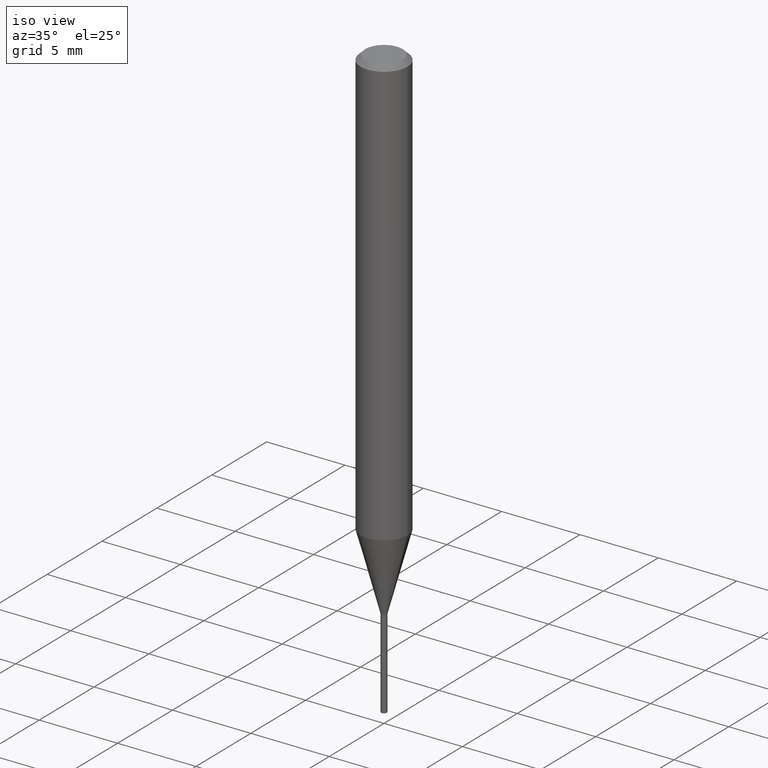
[diagram: clean part render]
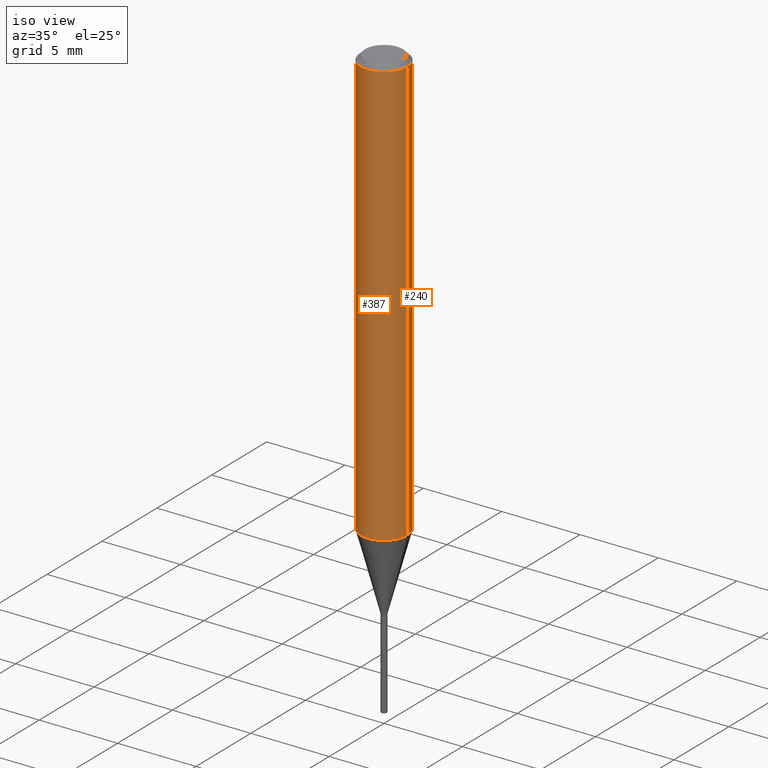
[diagram: same view with one multi-face feature highlighted, each face labeled with its STEP entity id]
A machine part, iso view. The highlighted faces form ONE feature: a constant-radius fillet chain: 2 tangent blend faces with common blend radius 1.4999 mm. The faces share edges in the B-rep.
Their STEP definitions:
[1] entity #387 (Cylinder):
#2 = EDGE_LOOP ( 'NONE', ( #309, #113, #274, #414 ) ) ;
#19 = CARTESIAN_POINT ( 'NONE',  ( -0.05905000000000013710, -3.336280682603885216E-15, -1.075719960546796861 ) ) ;
#22 = VECTOR ( 'NONE', #323, 39.37007874015748143 ) ;
#24 = LINE ( 'NONE', #112, #485 ) ;
#37 = VERTEX_POINT ( 'NONE', #192 ) ;
#44 = CARTESIAN_POINT ( 'NONE',  ( 0.05905000000000006771, -4.123439461173745257E-16, 2.879382386107503723E-30 ) ) ;
#77 = EDGE_CURVE ( 'NONE', #348, #37, #333, .T. ) ;
#78 = AXIS2_PLACEMENT_3D ( 'NONE', #340, #265, #335 ) ;
#112 = CARTESIAN_POINT ( 'NONE',  ( -0.05905000000000006771, 4.195754854663396409E-16, -2.904631170795525045E-30 ) ) ;
#113 = ORIENTED_EDGE ( 'NONE', *, *, #162, .T. ) ;
#117 = CARTESIAN_POINT ( 'NONE',  ( 0.05905000000000013710, -4.168200114187600418E-15, -1.075719960546796861 ) ) ;
#146 = VERTEX_POINT ( 'NONE', #19 ) ;
#157 = AXIS2_PLACEMENT_3D ( 'NONE', #427, #256, #419 ) ;
#162 = EDGE_CURVE ( 'NONE', #146, #459, #444, .T. ) ;
#163 = AXIS2_PLACEMENT_3D ( 'NONE', #172, #392, #424 ) ;
#172 = CARTESIAN_POINT ( 'NONE',  ( 2.630639607707897401E-29, -3.755856168070225498E-15, -1.075719960546796861 ) ) ;
#174 = CARTESIAN_POINT ( 'NONE',  ( -0.05904999999999999832, -1.478969795874641529E-15, -0.01181000000000007044 ) ) ;
#192 = CARTESIAN_POINT ( 'NONE',  ( 0.05904999999999999832, -4.535783407291118600E-16, -0.01181000000000007044 ) ) ;
#208 = LINE ( 'NONE', #44, #22 ) ;
#256 = DIRECTION ( 'NONE',  ( -2.445468806185136597E-29, 3.491481338843145583E-15, 1.000000000000000000 ) ) ;
#263 = EDGE_CURVE ( 'NONE', #459, #37, #208, .T. ) ;
#265 = DIRECTION ( 'NONE',  ( -2.445468806185136597E-29, 3.491481338843145583E-15, 1.000000000000000000 ) ) ;
#274 = ORIENTED_EDGE ( 'NONE', *, *, #263, .T. ) ;
#286 = CYLINDRICAL_SURFACE ( 'NONE', #157, 0.05905000000000006771 ) ;
#309 = ORIENTED_EDGE ( 'NONE', *, *, #435, .F. ) ;
#323 = DIRECTION ( 'NONE',  ( -2.445468806185136877E-29, 3.491481338843145188E-15, 1.000000000000000000 ) ) ;
#333 = CIRCLE ( 'NONE', #78, 0.05904999999999999832 ) ;
#335 = DIRECTION ( 'NONE',  ( 1.000000000000000000, -6.982962677686266711E-15, 0.000000000000000000 ) ) ;
#340 = CARTESIAN_POINT ( 'NONE',  ( 2.888098660104663766E-31, -4.123439461173779647E-17, -0.01181000000000007044 ) ) ;
#348 = VERTEX_POINT ( 'NONE', #174 ) ;
#387 = ADVANCED_FACE ( 'NONE', ( #454 ), #286, .T. ) ;
#392 = DIRECTION ( 'NONE',  ( -2.445468806185136597E-29, 3.491481338843145583E-15, 1.000000000000000000 ) ) ;
#414 = ORIENTED_EDGE ( 'NONE', *, *, #77, .F. ) ;
#419 = DIRECTION ( 'NONE',  ( 1.000000000000000000, -6.982962677686266711E-15, 4.876176775795936353E-29 ) ) ;
#424 = DIRECTION ( 'NONE',  ( 1.000000000000000000, -6.982962677686265133E-15, 0.000000000000000000 ) ) ;
#427 = CARTESIAN_POINT ( 'NONE',  ( 0.000000000000000000, 0.000000000000000000, 0.000000000000000000 ) ) ;
#435 = EDGE_CURVE ( 'NONE', #146, #348, #24, .T. ) ;
#444 = CIRCLE ( 'NONE', #163, 0.05905000000000013016 ) ;
#454 = FACE_OUTER_BOUND ( 'NONE', #2, .T. ) ;
#459 = VERTEX_POINT ( 'NONE', #117 ) ;
#485 = VECTOR ( 'NONE', #486, 39.37007874015748143 ) ;
#486 = DIRECTION ( 'NONE',  ( -2.445468806185136877E-29, 3.491481338843145188E-15, 1.000000000000000000 ) ) ;
[2] entity #240 (Cylinder):
#13 = DIRECTION ( 'NONE',  ( -2.445468806185136597E-29, 3.491481338843145583E-15, 1.000000000000000000 ) ) ;
#19 = CARTESIAN_POINT ( 'NONE',  ( -0.05905000000000013710, -3.336280682603885216E-15, -1.075719960546796861 ) ) ;
#22 = VECTOR ( 'NONE', #323, 39.37007874015748143 ) ;
#24 = LINE ( 'NONE', #112, #485 ) ;
#25 = ORIENTED_EDGE ( 'NONE', *, *, #263, .F. ) ;
#37 = VERTEX_POINT ( 'NONE', #192 ) ;
#44 = CARTESIAN_POINT ( 'NONE',  ( 0.05905000000000006771, -4.123439461173745257E-16, 2.879382386107503723E-30 ) ) ;
#55 = ORIENTED_EDGE ( 'NONE', *, *, #435, .T. ) ;
#65 = DIRECTION ( 'NONE',  ( -2.445468806185136597E-29, 3.491481338843145583E-15, 1.000000000000000000 ) ) ;
#88 = DIRECTION ( 'NONE',  ( -2.445468806185136597E-29, 3.491481338843145583E-15, 1.000000000000000000 ) ) ;
#94 = CIRCLE ( 'NONE', #189, 0.05904999999999999832 ) ;
#108 = ORIENTED_EDGE ( 'NONE', *, *, #200, .F. ) ;
#111 = CARTESIAN_POINT ( 'NONE',  ( 0.000000000000000000, 0.000000000000000000, 0.000000000000000000 ) ) ;
#112 = CARTESIAN_POINT ( 'NONE',  ( -0.05905000000000006771, 4.195754854663396409E-16, -2.904631170795525045E-30 ) ) ;
#117 = CARTESIAN_POINT ( 'NONE',  ( 0.05905000000000013710, -4.168200114187600418E-15, -1.075719960546796861 ) ) ;
#128 = ORIENTED_EDGE ( 'NONE', *, *, #221, .T. ) ;
#146 = VERTEX_POINT ( 'NONE', #19 ) ;
#155 = CARTESIAN_POINT ( 'NONE',  ( 2.630639607707897401E-29, -3.755856168070225498E-15, -1.075719960546796861 ) ) ;
#159 = FACE_OUTER_BOUND ( 'NONE', #222, .T. ) ;
#174 = CARTESIAN_POINT ( 'NONE',  ( -0.05904999999999999832, -1.478969795874641529E-15, -0.01181000000000007044 ) ) ;
#189 = AXIS2_PLACEMENT_3D ( 'NONE', #429, #88, #272 ) ;
#192 = CARTESIAN_POINT ( 'NONE',  ( 0.05904999999999999832, -4.535783407291118600E-16, -0.01181000000000007044 ) ) ;
#200 = EDGE_CURVE ( 'NONE', #37, #348, #94, .T. ) ;
#206 = DIRECTION ( 'NONE',  ( 1.000000000000000000, -6.982962677686266711E-15, 4.876176775795936353E-29 ) ) ;
#208 = LINE ( 'NONE', #44, #22 ) ;
#221 = EDGE_CURVE ( 'NONE', #459, #146, #378, .T. ) ;
#222 = EDGE_LOOP ( 'NONE', ( #128, #55, #108, #25 ) ) ;
#240 = ADVANCED_FACE ( 'NONE', ( #159 ), #446, .T. ) ;
#263 = EDGE_CURVE ( 'NONE', #459, #37, #208, .T. ) ;
#272 = DIRECTION ( 'NONE',  ( 1.000000000000000000, -6.982962677686266711E-15, 0.000000000000000000 ) ) ;
#310 = DIRECTION ( 'NONE',  ( 1.000000000000000000, -6.982962677686265133E-15, 0.000000000000000000 ) ) ;
#323 = DIRECTION ( 'NONE',  ( -2.445468806185136877E-29, 3.491481338843145188E-15, 1.000000000000000000 ) ) ;
#348 = VERTEX_POINT ( 'NONE', #174 ) ;
#356 = AXIS2_PLACEMENT_3D ( 'NONE', #111, #13, #206 ) ;
#378 = CIRCLE ( 'NONE', #410, 0.05905000000000013016 ) ;
#410 = AXIS2_PLACEMENT_3D ( 'NONE', #155, #65, #310 ) ;
#429 = CARTESIAN_POINT ( 'NONE',  ( 2.888098660104663766E-31, -4.123439461173779647E-17, -0.01181000000000007044 ) ) ;
#435 = EDGE_CURVE ( 'NONE', #146, #348, #24, .T. ) ;
#446 = CYLINDRICAL_SURFACE ( 'NONE', #356, 0.05905000000000006771 ) ;
#459 = VERTEX_POINT ( 'NONE', #117 ) ;
#485 = VECTOR ( 'NONE', #486, 39.37007874015748143 ) ;
#486 = DIRECTION ( 'NONE',  ( -2.445468806185136877E-29, 3.491481338843145188E-15, 1.000000000000000000 ) ) ;